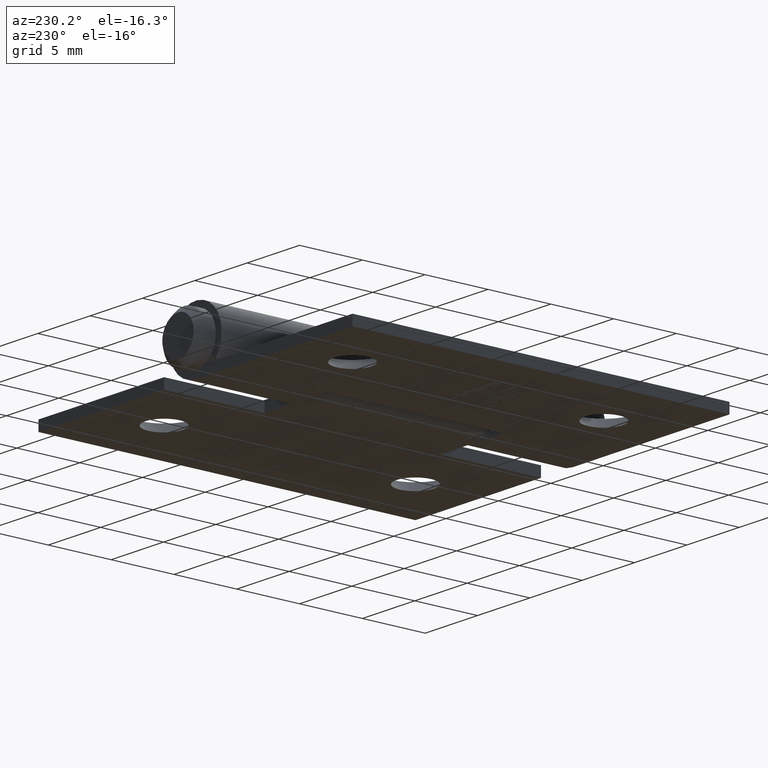
[diagram: clean part render]
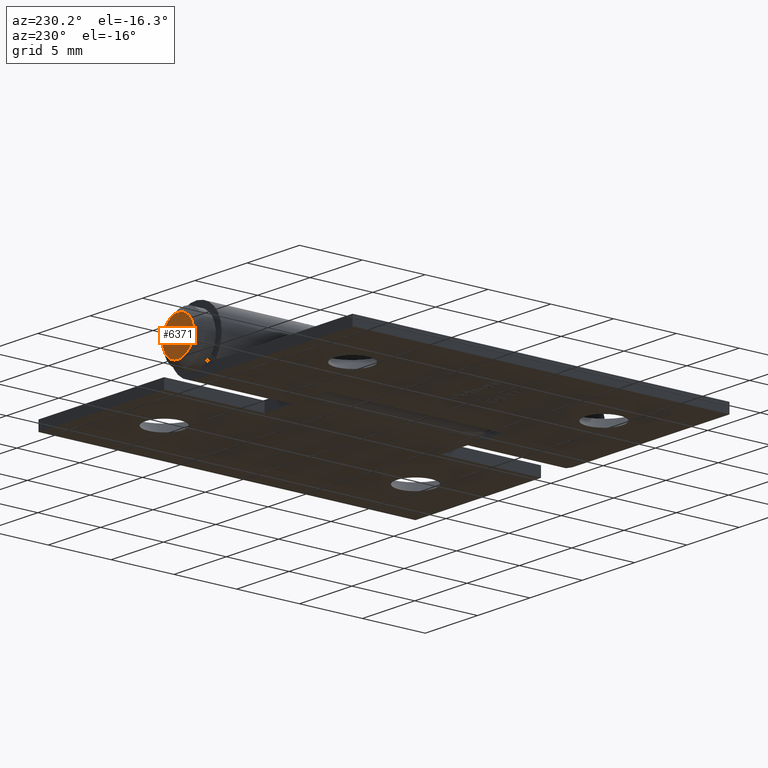
[diagram: same view with one face highlighted and labeled with its STEP entity id]
A machine part, auxiliary view. The second image highlights one B-rep face of the part: STEP entity #6371.
In plain terms, the highlighted planar face has unit normal (0, 1, 0).
Its self-contained STEP definition (entity closure, byte-faithful):
#863 = EDGE_LOOP ( 'NONE', ( #8487 ) ) ;
#913 = DIRECTION ( 'NONE',  ( -0.000000000000000000, -1.000000000000000000, -0.000000000000000000 ) ) ;
#1589 = PLANE ( 'NONE',  #4895 ) ;
#1710 = CARTESIAN_POINT ( 'NONE',  ( 0.000000000000000000, 16.40000000000000213, 0.000000000000000000 ) ) ;
#2969 = EDGE_CURVE ( 'NONE', #3487, #3487, #4280, .T. ) ;
#3487 = VERTEX_POINT ( 'NONE', #4510 ) ;
#4280 = CIRCLE ( 'NONE', #6043, 1.499999999999999778 ) ;
#4510 = CARTESIAN_POINT ( 'NONE',  ( 0.000000000000000000, 16.40000000000000213, -1.499999999999999778 ) ) ;
#4799 = FACE_OUTER_BOUND ( 'NONE', #863, .T. ) ;
#4895 = AXIS2_PLACEMENT_3D ( 'NONE', #9655, #6779, #5227 ) ;
#5227 = DIRECTION ( 'NONE',  ( 0.000000000000000000, -0.000000000000000000, 1.000000000000000000 ) ) ;
#6043 = AXIS2_PLACEMENT_3D ( 'NONE', #1710, #913, #7658 ) ;
#6371 = ADVANCED_FACE ( 'NONE', ( #4799 ), #1589, .T. ) ;
#6779 = DIRECTION ( 'NONE',  ( 0.000000000000000000, 1.000000000000000000, 0.000000000000000000 ) ) ;
#7658 = DIRECTION ( 'NONE',  ( 0.000000000000000000, 0.000000000000000000, -1.000000000000000000 ) ) ;
#8487 = ORIENTED_EDGE ( 'NONE', *, *, #2969, .F. ) ;
#9655 = CARTESIAN_POINT ( 'NONE',  ( 0.000000000000000000, 16.39999999999999858, 0.000000000000000000 ) ) ;